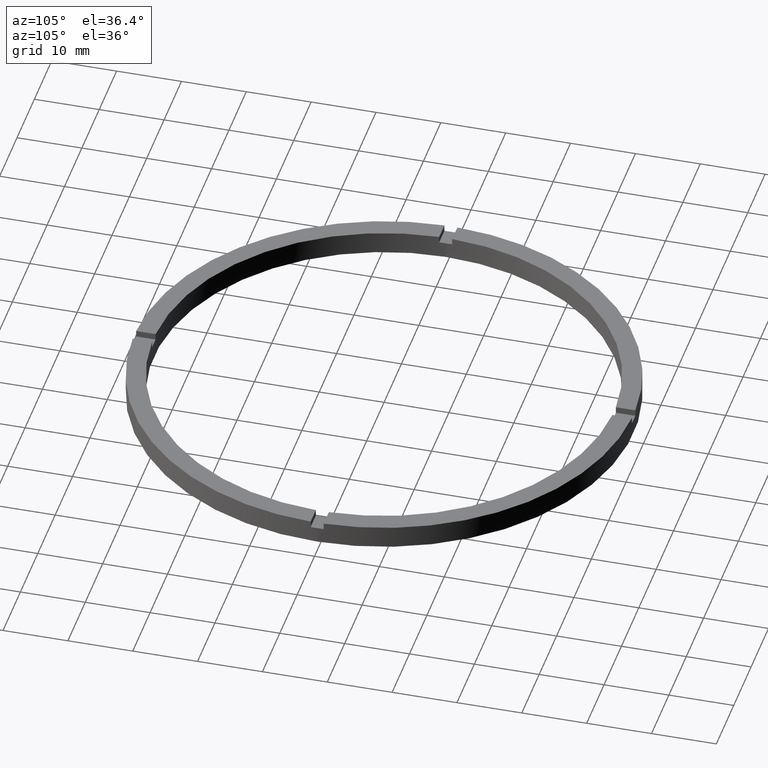
[diagram: clean part render]
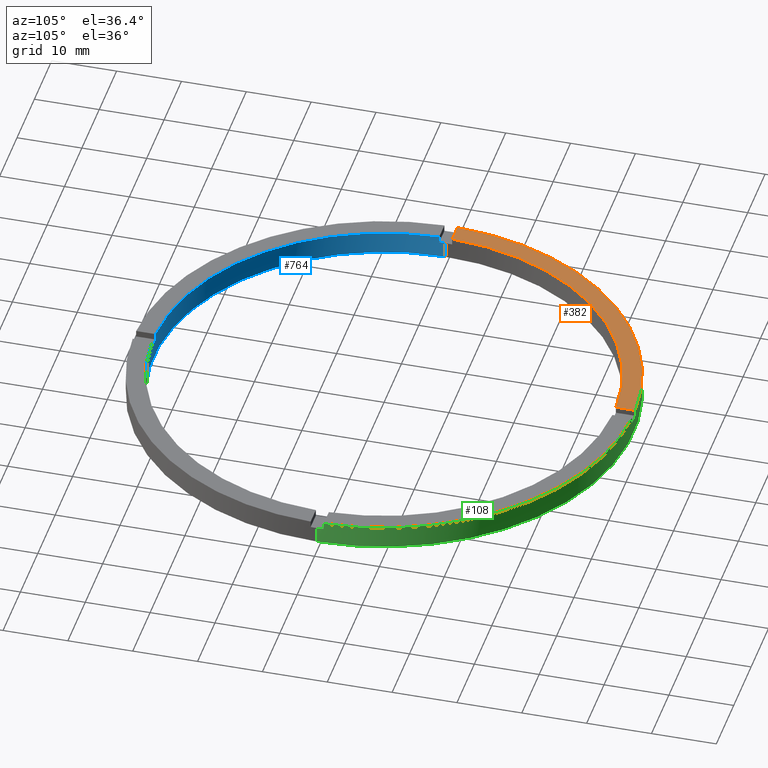
[diagram: same view with three faces highlighted in distinct colors, each labeled with its STEP entity id]
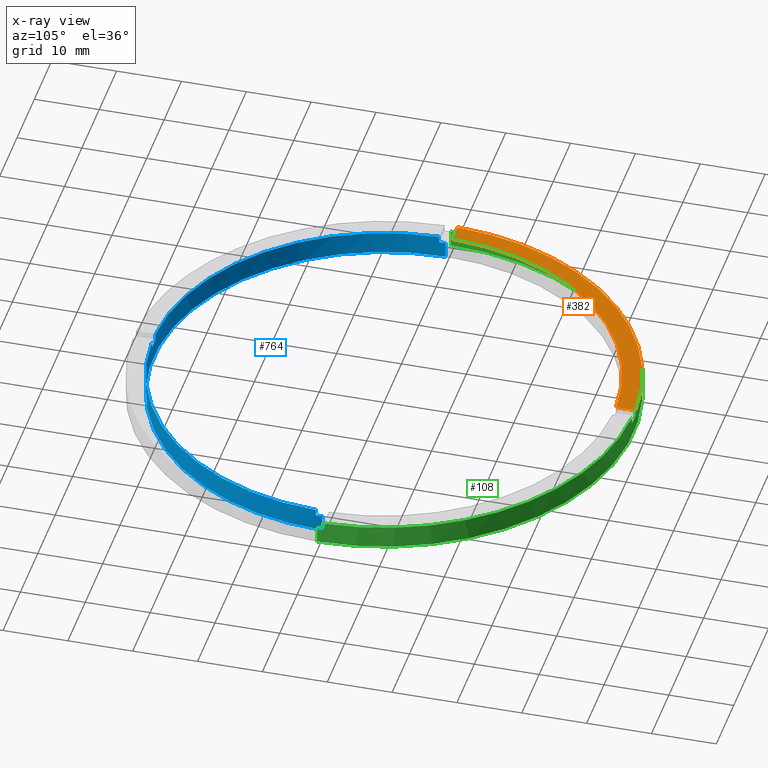
[diagram: x-ray of the same camera — body ghosted, the three highlighted faces saturated]
A machine part, auxiliary view with three faces highlighted in distinct colors.
The next image is the same camera in x-ray (body ghosted, the three faces saturated) — at least one of them is partly hidden behind the body in this view.
Their STEP definitions:

[orange] entity #382 — the highlighted planar face has unit normal (0, 0, 1).
#3 = CARTESIAN_POINT ( 'NONE',  ( 0.000000000000000000, 0.000000000000000000, 3.500000000000000000 ) ) ;
#5 = DIRECTION ( 'NONE',  ( 1.000000000000000000, 0.000000000000000000, 0.000000000000000000 ) ) ;
#25 = DIRECTION ( 'NONE',  ( 0.000000000000000000, 0.000000000000000000, 1.000000000000000000 ) ) ;
#54 = DIRECTION ( 'NONE',  ( 0.000000000000000000, 0.000000000000000000, 1.000000000000000000 ) ) ;
#59 = CARTESIAN_POINT ( 'NONE',  ( -1.000000000000025313, 28.49999999999999645, 3.500000000000000000 ) ) ;
#93 = EDGE_CURVE ( 'NONE', #763, #190, #311, .T. ) ;
#95 = DIRECTION ( 'NONE',  ( -1.000000000000000000, -1.951563910473907735E-16, 0.000000000000000000 ) ) ;
#168 = DIRECTION ( 'NONE',  ( -0.000000000000000000, -1.000000000000000000, -0.000000000000000000 ) ) ;
#175 = CARTESIAN_POINT ( 'NONE',  ( 0.000000000000000000, 0.000000000000000000, 3.500000000000000000 ) ) ;
#190 = VERTEX_POINT ( 'NONE', #381 ) ;
#215 = CARTESIAN_POINT ( 'NONE',  ( -1.000000000000025313, 35.48591269785801217, 3.500000000000000000 ) ) ;
#231 = ORIENTED_EDGE ( 'NONE', *, *, #659, .F. ) ;
#257 = LINE ( 'NONE', #59, #500 ) ;
#311 = CIRCLE ( 'NONE', #563, 38.50000000000000000 ) ;
#339 = CARTESIAN_POINT ( 'NONE',  ( -28.50000000000018474, 0.9999999999999740208, 3.500000000000000000 ) ) ;
#381 = CARTESIAN_POINT ( 'NONE',  ( -38.48701079585163143, 0.9999999999999720224, 3.500000000000000000 ) ) ;
#382 = ADVANCED_FACE ( 'NONE', ( #741 ), #709, .T. ) ;
#388 = EDGE_CURVE ( 'NONE', #763, #740, #257, .T. ) ;
#403 = DIRECTION ( 'NONE',  ( 0.000000000000000000, 0.000000000000000000, 1.000000000000000000 ) ) ;
#429 = VERTEX_POINT ( 'NONE', #615 ) ;
#500 = VECTOR ( 'NONE', #168, 1000.000000000000000 ) ;
#538 = DIRECTION ( 'NONE',  ( 1.000000000000000000, 0.000000000000000000, -0.000000000000000000 ) ) ;
#546 = ORIENTED_EDGE ( 'NONE', *, *, #93, .T. ) ;
#551 = ORIENTED_EDGE ( 'NONE', *, *, #647, .F. ) ;
#563 = AXIS2_PLACEMENT_3D ( 'NONE', #175, #403, #5 ) ;
#566 = AXIS2_PLACEMENT_3D ( 'NONE', #3, #54, #538 ) ;
#583 = CIRCLE ( 'NONE', #656, 35.50000000000000711 ) ;
#587 = VECTOR ( 'NONE', #95, 1000.000000000000000 ) ;
#599 = ORIENTED_EDGE ( 'NONE', *, *, #388, .F. ) ;
#609 = LINE ( 'NONE', #339, #587 ) ;
#615 = CARTESIAN_POINT ( 'NONE',  ( -35.48591269785801217, 0.9999999999999726885, 3.500000000000000000 ) ) ;
#647 = EDGE_CURVE ( 'NONE', #740, #429, #583, .T. ) ;
#656 = AXIS2_PLACEMENT_3D ( 'NONE', #757, #25, #664 ) ;
#659 = EDGE_CURVE ( 'NONE', #429, #190, #609, .T. ) ;
#664 = DIRECTION ( 'NONE',  ( 1.000000000000000000, 0.000000000000000000, 0.000000000000000000 ) ) ;
#709 = PLANE ( 'NONE',  #566 ) ;
#740 = VERTEX_POINT ( 'NONE', #215 ) ;
#741 = FACE_OUTER_BOUND ( 'NONE', #767, .T. ) ;
#757 = CARTESIAN_POINT ( 'NONE',  ( 0.000000000000000000, 0.000000000000000000, 3.500000000000000000 ) ) ;
#763 = VERTEX_POINT ( 'NONE', #768 ) ;
#767 = EDGE_LOOP ( 'NONE', ( #599, #546, #231, #551 ) ) ;
#768 = CARTESIAN_POINT ( 'NONE',  ( -1.000000000000025313, 38.48701079585163143, 3.500000000000000000 ) ) ;

[blue] entity #764 — the highlighted cylindrical surface (partial cylindrical patch) has radius 35.5 mm, axis along (-0, -0, -1).
#15 = DIRECTION ( 'NONE',  ( -0.000000000000000000, -0.000000000000000000, -1.000000000000000000 ) ) ;
#21 = CARTESIAN_POINT ( 'NONE',  ( 0.9999999999998400169, -35.48591269785801927, 3.500000000000000000 ) ) ;
#26 = VERTEX_POINT ( 'NONE', #302 ) ;
#36 = AXIS2_PLACEMENT_3D ( 'NONE', #206, #140, #277 ) ;
#52 = CYLINDRICAL_SURFACE ( 'NONE', #681, 35.50000000000000711 ) ;
#60 = LINE ( 'NONE', #716, #602 ) ;
#70 = LINE ( 'NONE', #733, #346 ) ;
#72 = EDGE_CURVE ( 'NONE', #673, #182, #562, .T. ) ;
#81 = CIRCLE ( 'NONE', #590, 35.50000000000000711 ) ;
#84 = DIRECTION ( 'NONE',  ( -0.000000000000000000, -0.000000000000000000, -1.000000000000000000 ) ) ;
#88 = DIRECTION ( 'NONE',  ( 1.000000000000000000, 0.000000000000000000, 0.000000000000000000 ) ) ;
#100 = DIRECTION ( 'NONE',  ( -1.000000000000000000, 0.000000000000000000, 0.000000000000000000 ) ) ;
#101 = CARTESIAN_POINT ( 'NONE',  ( 0.000000000000000000, 0.000000000000000000, 3.500000000000000000 ) ) ;
#117 = DIRECTION ( 'NONE',  ( -0.000000000000000000, 0.000000000000000000, 1.000000000000000000 ) ) ;
#124 = CARTESIAN_POINT ( 'NONE',  ( -1.000000000000160094, -35.48591269785800506, 3.500000000000000000 ) ) ;
#133 = CARTESIAN_POINT ( 'NONE',  ( -35.48591269785801217, -1.000000000000027311, 3.500000000000000000 ) ) ;
#139 = DIRECTION ( 'NONE',  ( 0.000000000000000000, 0.000000000000000000, 1.000000000000000000 ) ) ;
#140 = DIRECTION ( 'NONE',  ( 0.000000000000000000, 0.000000000000000000, 1.000000000000000000 ) ) ;
#142 = DIRECTION ( 'NONE',  ( 1.000000000000000000, 0.000000000000000000, 0.000000000000000000 ) ) ;
#170 = ORIENTED_EDGE ( 'NONE', *, *, #503, .T. ) ;
#173 = ORIENTED_EDGE ( 'NONE', *, *, #214, .T. ) ;
#179 = VERTEX_POINT ( 'NONE', #680 ) ;
#182 = VERTEX_POINT ( 'NONE', #451 ) ;
#194 = VERTEX_POINT ( 'NONE', #392 ) ;
#197 = CARTESIAN_POINT ( 'NONE',  ( -1.000000000000160094, -35.48591269785800506, 2.500000000000000000 ) ) ;
#200 = ORIENTED_EDGE ( 'NONE', *, *, #641, .F. ) ;
#204 = DIRECTION ( 'NONE',  ( 0.000000000000000000, 0.000000000000000000, 1.000000000000000000 ) ) ;
#206 = CARTESIAN_POINT ( 'NONE',  ( 0.000000000000000000, 0.000000000000000000, 2.500000000000000000 ) ) ;
#209 = ORIENTED_EDGE ( 'NONE', *, *, #620, .F. ) ;
#214 = EDGE_CURVE ( 'NONE', #673, #194, #492, .T. ) ;
#217 = LINE ( 'NONE', #383, #501 ) ;
#229 = CIRCLE ( 'NONE', #622, 35.50000000000000711 ) ;
#230 = EDGE_CURVE ( 'NONE', #542, #770, #771, .T. ) ;
#235 = EDGE_CURVE ( 'NONE', #26, #770, #754, .T. ) ;
#247 = VECTOR ( 'NONE', #522, 1000.000000000000000 ) ;
#250 = VERTEX_POINT ( 'NONE', #21 ) ;
#265 = EDGE_CURVE ( 'NONE', #713, #179, #217, .T. ) ;
#275 = CARTESIAN_POINT ( 'NONE',  ( 0.000000000000000000, 0.000000000000000000, 3.500000000000000000 ) ) ;
#277 = DIRECTION ( 'NONE',  ( 1.000000000000000000, 0.000000000000000000, 0.000000000000000000 ) ) ;
#280 = CARTESIAN_POINT ( 'NONE',  ( 35.50000000000000711, 4.347496136973104070E-15, 0.000000000000000000 ) ) ;
#283 = VERTEX_POINT ( 'NONE', #726 ) ;
#302 = CARTESIAN_POINT ( 'NONE',  ( -35.50000000000000711, 0.000000000000000000, 0.000000000000000000 ) ) ;
#323 = DIRECTION ( 'NONE',  ( 0.000000000000000000, 0.000000000000000000, 1.000000000000000000 ) ) ;
#332 = CARTESIAN_POINT ( 'NONE',  ( 0.000000000000000000, 0.000000000000000000, 0.000000000000000000 ) ) ;
#336 = CIRCLE ( 'NONE', #649, 35.50000000000000711 ) ;
#338 = ORIENTED_EDGE ( 'NONE', *, *, #230, .T. ) ;
#340 = ORIENTED_EDGE ( 'NONE', *, *, #778, .T. ) ;
#345 = CARTESIAN_POINT ( 'NONE',  ( -35.48591269785801217, -1.000000000000027311, 3.500000000000000000 ) ) ;
#346 = VECTOR ( 'NONE', #84, 1000.000000000000000 ) ;
#350 = FACE_OUTER_BOUND ( 'NONE', #466, .T. ) ;
#353 = LINE ( 'NONE', #124, #576 ) ;
#354 = CARTESIAN_POINT ( 'NONE',  ( 35.48591269785800506, -1.000000000000157430, 2.500000000000000000 ) ) ;
#365 = AXIS2_PLACEMENT_3D ( 'NONE', #332, #323, #88 ) ;
#374 = DIRECTION ( 'NONE',  ( 1.000000000000000000, 0.000000000000000000, 0.000000000000000000 ) ) ;
#380 = DIRECTION ( 'NONE',  ( 1.000000000000000000, 0.000000000000000000, 0.000000000000000000 ) ) ;
#383 = CARTESIAN_POINT ( 'NONE',  ( 35.48591269785800506, -1.000000000000157430, 3.500000000000000000 ) ) ;
#391 = DIRECTION ( 'NONE',  ( -0.000000000000000000, -0.000000000000000000, -1.000000000000000000 ) ) ;
#392 = CARTESIAN_POINT ( 'NONE',  ( -1.000000000000160094, -35.48591269785800506, 3.500000000000000000 ) ) ;
#397 = DIRECTION ( 'NONE',  ( 0.000000000000000000, 0.000000000000000000, 1.000000000000000000 ) ) ;
#440 = CARTESIAN_POINT ( 'NONE',  ( 35.50000000000000711, 4.347496136973104070E-15, 3.500000000000000000 ) ) ;
#451 = CARTESIAN_POINT ( 'NONE',  ( -35.48591269785801217, -1.000000000000027311, 2.500000000000000000 ) ) ;
#455 = ORIENTED_EDGE ( 'NONE', *, *, #705, .T. ) ;
#460 = CARTESIAN_POINT ( 'NONE',  ( -35.50000000000000711, 0.000000000000000000, 2.500000000000000000 ) ) ;
#466 = EDGE_LOOP ( 'NONE', ( #712, #338, #675, #209, #455, #597, #173, #200, #170, #682, #340, #697 ) ) ;
#489 = DIRECTION ( 'NONE',  ( 0.000000000000000000, 0.000000000000000000, 1.000000000000000000 ) ) ;
#492 = CIRCLE ( 'NONE', #634, 35.50000000000000711 ) ;
#501 = VECTOR ( 'NONE', #511, 1000.000000000000000 ) ;
#503 = EDGE_CURVE ( 'NONE', #683, #283, #229, .T. ) ;
#511 = DIRECTION ( 'NONE',  ( 0.000000000000000000, 0.000000000000000000, 1.000000000000000000 ) ) ;
#521 = CARTESIAN_POINT ( 'NONE',  ( 0.000000000000000000, 0.000000000000000000, 2.500000000000000000 ) ) ;
#522 = DIRECTION ( 'NONE',  ( -0.000000000000000000, -0.000000000000000000, -1.000000000000000000 ) ) ;
#542 = VERTEX_POINT ( 'NONE', #653 ) ;
#553 = VECTOR ( 'NONE', #671, 1000.000000000000000 ) ;
#562 = LINE ( 'NONE', #345, #553 ) ;
#573 = CIRCLE ( 'NONE', #36, 35.50000000000000711 ) ;
#576 = VECTOR ( 'NONE', #489, 1000.000000000000000 ) ;
#582 = CARTESIAN_POINT ( 'NONE',  ( 0.000000000000000000, 0.000000000000000000, 2.500000000000000000 ) ) ;
#590 = AXIS2_PLACEMENT_3D ( 'NONE', #521, #204, #380 ) ;
#597 = ORIENTED_EDGE ( 'NONE', *, *, #72, .F. ) ;
#602 = VECTOR ( 'NONE', #15, 1000.000000000000000 ) ;
#620 = EDGE_CURVE ( 'NONE', #760, #26, #60, .T. ) ;
#621 = EDGE_CURVE ( 'NONE', #250, #283, #70, .T. ) ;
#622 = AXIS2_PLACEMENT_3D ( 'NONE', #582, #117, #374 ) ;
#634 = AXIS2_PLACEMENT_3D ( 'NONE', #101, #139, #142 ) ;
#638 = CARTESIAN_POINT ( 'NONE',  ( 0.000000000000000000, 0.000000000000000000, 3.500000000000000000 ) ) ;
#641 = EDGE_CURVE ( 'NONE', #683, #194, #353, .T. ) ;
#649 = AXIS2_PLACEMENT_3D ( 'NONE', #275, #397, #672 ) ;
#653 = CARTESIAN_POINT ( 'NONE',  ( 35.50000000000000711, 4.347496136973104070E-15, 2.500000000000000000 ) ) ;
#660 = EDGE_CURVE ( 'NONE', #713, #542, #573, .T. ) ;
#671 = DIRECTION ( 'NONE',  ( -0.000000000000000000, -0.000000000000000000, -1.000000000000000000 ) ) ;
#672 = DIRECTION ( 'NONE',  ( 1.000000000000000000, 0.000000000000000000, 0.000000000000000000 ) ) ;
#673 = VERTEX_POINT ( 'NONE', #133 ) ;
#675 = ORIENTED_EDGE ( 'NONE', *, *, #235, .F. ) ;
#680 = CARTESIAN_POINT ( 'NONE',  ( 35.48591269785800506, -1.000000000000157430, 3.500000000000000000 ) ) ;
#681 = AXIS2_PLACEMENT_3D ( 'NONE', #638, #391, #100 ) ;
#682 = ORIENTED_EDGE ( 'NONE', *, *, #621, .F. ) ;
#683 = VERTEX_POINT ( 'NONE', #197 ) ;
#697 = ORIENTED_EDGE ( 'NONE', *, *, #265, .F. ) ;
#705 = EDGE_CURVE ( 'NONE', #760, #182, #81, .T. ) ;
#712 = ORIENTED_EDGE ( 'NONE', *, *, #660, .T. ) ;
#713 = VERTEX_POINT ( 'NONE', #354 ) ;
#716 = CARTESIAN_POINT ( 'NONE',  ( -35.50000000000000711, 0.000000000000000000, 3.500000000000000000 ) ) ;
#726 = CARTESIAN_POINT ( 'NONE',  ( 0.9999999999998400169, -35.48591269785801927, 2.500000000000000000 ) ) ;
#733 = CARTESIAN_POINT ( 'NONE',  ( 0.9999999999998400169, -35.48591269785801927, 3.500000000000000000 ) ) ;
#754 = CIRCLE ( 'NONE', #365, 35.50000000000000711 ) ;
#760 = VERTEX_POINT ( 'NONE', #460 ) ;
#764 = ADVANCED_FACE ( 'NONE', ( #350 ), #52, .F. ) ;
#770 = VERTEX_POINT ( 'NONE', #280 ) ;
#771 = LINE ( 'NONE', #440, #247 ) ;
#778 = EDGE_CURVE ( 'NONE', #250, #179, #336, .T. ) ;

[green] entity #108 — the highlighted cylindrical surface (partial cylindrical patch) has radius 38.5 mm, axis along (-0, -0, -1).
#5 = DIRECTION ( 'NONE',  ( 1.000000000000000000, 0.000000000000000000, 0.000000000000000000 ) ) ;
#16 = VERTEX_POINT ( 'NONE', #106 ) ;
#18 = VECTOR ( 'NONE', #481, 1000.000000000000000 ) ;
#42 = EDGE_CURVE ( 'NONE', #71, #695, #291, .T. ) ;
#56 = AXIS2_PLACEMENT_3D ( 'NONE', #498, #550, #315 ) ;
#63 = DIRECTION ( 'NONE',  ( -1.000000000000000000, 0.000000000000000000, 0.000000000000000000 ) ) ;
#71 = VERTEX_POINT ( 'NONE', #384 ) ;
#77 = ORIENTED_EDGE ( 'NONE', *, *, #606, .F. ) ;
#90 = EDGE_CURVE ( 'NONE', #443, #16, #322, .T. ) ;
#91 = LINE ( 'NONE', #255, #591 ) ;
#93 = EDGE_CURVE ( 'NONE', #763, #190, #311, .T. ) ;
#106 = CARTESIAN_POINT ( 'NONE',  ( -1.000000000000025313, 38.48701079585163143, 2.500000000000000000 ) ) ;
#108 = ADVANCED_FACE ( 'NONE', ( #308 ), #575, .T. ) ;
#116 = AXIS2_PLACEMENT_3D ( 'NONE', #603, #517, #773 ) ;
#138 = DIRECTION ( 'NONE',  ( 1.000000000000000000, 0.000000000000000000, 0.000000000000000000 ) ) ;
#141 = CARTESIAN_POINT ( 'NONE',  ( 38.48701079585163853, 0.9999999999998427924, 2.500000000000000000 ) ) ;
#151 = DIRECTION ( 'NONE',  ( -0.000000000000000000, -0.000000000000000000, -1.000000000000000000 ) ) ;
#158 = ORIENTED_EDGE ( 'NONE', *, *, #90, .F. ) ;
#175 = CARTESIAN_POINT ( 'NONE',  ( 0.000000000000000000, 0.000000000000000000, 3.500000000000000000 ) ) ;
#176 = ORIENTED_EDGE ( 'NONE', *, *, #366, .T. ) ;
#190 = VERTEX_POINT ( 'NONE', #381 ) ;
#199 = AXIS2_PLACEMENT_3D ( 'NONE', #665, #586, #138 ) ;
#207 = VERTEX_POINT ( 'NONE', #427 ) ;
#220 = VECTOR ( 'NONE', #151, 1000.000000000000000 ) ;
#221 = LINE ( 'NONE', #588, #474 ) ;
#228 = ORIENTED_EDGE ( 'NONE', *, *, #93, .F. ) ;
#243 = VECTOR ( 'NONE', #545, 1000.000000000000000 ) ;
#255 = CARTESIAN_POINT ( 'NONE',  ( 38.50000000000000000, 4.714890176717309515E-15, 3.500000000000000000 ) ) ;
#259 = CARTESIAN_POINT ( 'NONE',  ( -38.50000000000000000, 0.000000000000000000, 3.500000000000000000 ) ) ;
#262 = DIRECTION ( 'NONE',  ( -0.000000000000000000, -0.000000000000000000, -1.000000000000000000 ) ) ;
#268 = CARTESIAN_POINT ( 'NONE',  ( 0.000000000000000000, 0.000000000000000000, 2.500000000000000000 ) ) ;
#291 = LINE ( 'NONE', #782, #18 ) ;
#292 = CARTESIAN_POINT ( 'NONE',  ( -38.50000000000000000, 0.000000000000000000, 2.500000000000000000 ) ) ;
#293 = CARTESIAN_POINT ( 'NONE',  ( 0.9999999999999746869, 38.48701079585163143, 2.500000000000000000 ) ) ;
#301 = EDGE_CURVE ( 'NONE', #528, #190, #494, .T. ) ;
#304 = CARTESIAN_POINT ( 'NONE',  ( 0.000000000000000000, 0.000000000000000000, 3.500000000000000000 ) ) ;
#308 = FACE_OUTER_BOUND ( 'NONE', #344, .T. ) ;
#311 = CIRCLE ( 'NONE', #563, 38.50000000000000000 ) ;
#315 = DIRECTION ( 'NONE',  ( 1.000000000000000000, 0.000000000000000000, 0.000000000000000000 ) ) ;
#317 = VECTOR ( 'NONE', #557, 1000.000000000000000 ) ;
#322 = CIRCLE ( 'NONE', #116, 38.50000000000000000 ) ;
#328 = AXIS2_PLACEMENT_3D ( 'NONE', #658, #533, #738 ) ;
#344 = EDGE_LOOP ( 'NONE', ( #732, #721, #176, #77, #424, #487, #228, #684, #158, #434, #457, #585 ) ) ;
#347 = CIRCLE ( 'NONE', #199, 38.50000000000000000 ) ;
#349 = EDGE_CURVE ( 'NONE', #207, #695, #766, .T. ) ;
#357 = LINE ( 'NONE', #259, #317 ) ;
#366 = EDGE_CURVE ( 'NONE', #465, #415, #731, .T. ) ;
#368 = CARTESIAN_POINT ( 'NONE',  ( -38.50000000000000000, 0.000000000000000000, 0.000000000000000000 ) ) ;
#369 = DIRECTION ( 'NONE',  ( 0.000000000000000000, 0.000000000000000000, 1.000000000000000000 ) ) ;
#371 = EDGE_CURVE ( 'NONE', #528, #724, #508, .T. ) ;
#375 = CARTESIAN_POINT ( 'NONE',  ( -38.48701079585163143, 0.9999999999999720224, 3.500000000000000000 ) ) ;
#381 = CARTESIAN_POINT ( 'NONE',  ( -38.48701079585163143, 0.9999999999999720224, 3.500000000000000000 ) ) ;
#384 = CARTESIAN_POINT ( 'NONE',  ( 38.48701079585163853, 0.9999999999998427924, 3.500000000000000000 ) ) ;
#401 = CARTESIAN_POINT ( 'NONE',  ( 38.50000000000000000, 4.714890176717309515E-15, 0.000000000000000000 ) ) ;
#403 = DIRECTION ( 'NONE',  ( 0.000000000000000000, 0.000000000000000000, 1.000000000000000000 ) ) ;
#415 = VERTEX_POINT ( 'NONE', #368 ) ;
#419 = EDGE_CURVE ( 'NONE', #763, #16, #482, .T. ) ;
#424 = ORIENTED_EDGE ( 'NONE', *, *, #371, .F. ) ;
#427 = CARTESIAN_POINT ( 'NONE',  ( 38.50000000000000000, 4.714890176717309515E-15, 2.500000000000000000 ) ) ;
#434 = ORIENTED_EDGE ( 'NONE', *, *, #476, .T. ) ;
#439 = CARTESIAN_POINT ( 'NONE',  ( 0.9999999999999746869, 38.48701079585163143, 3.500000000000000000 ) ) ;
#441 = AXIS2_PLACEMENT_3D ( 'NONE', #304, #262, #63 ) ;
#443 = VERTEX_POINT ( 'NONE', #293 ) ;
#457 = ORIENTED_EDGE ( 'NONE', *, *, #701, .F. ) ;
#465 = VERTEX_POINT ( 'NONE', #401 ) ;
#473 = DIRECTION ( 'NONE',  ( 1.000000000000000000, 0.000000000000000000, 0.000000000000000000 ) ) ;
#474 = VECTOR ( 'NONE', #644, 1000.000000000000000 ) ;
#476 = EDGE_CURVE ( 'NONE', #443, #708, #221, .T. ) ;
#481 = DIRECTION ( 'NONE',  ( -0.000000000000000000, -0.000000000000000000, -1.000000000000000000 ) ) ;
#482 = LINE ( 'NONE', #710, #220 ) ;
#487 = ORIENTED_EDGE ( 'NONE', *, *, #301, .T. ) ;
#494 = LINE ( 'NONE', #375, #243 ) ;
#496 = DIRECTION ( 'NONE',  ( -0.000000000000000000, -0.000000000000000000, -1.000000000000000000 ) ) ;
#498 = CARTESIAN_POINT ( 'NONE',  ( 0.000000000000000000, 0.000000000000000000, 0.000000000000000000 ) ) ;
#508 = CIRCLE ( 'NONE', #328, 38.50000000000000000 ) ;
#517 = DIRECTION ( 'NONE',  ( 0.000000000000000000, -0.000000000000000000, 1.000000000000000000 ) ) ;
#528 = VERTEX_POINT ( 'NONE', #657 ) ;
#533 = DIRECTION ( 'NONE',  ( 0.000000000000000000, 0.000000000000000000, 1.000000000000000000 ) ) ;
#545 = DIRECTION ( 'NONE',  ( 0.000000000000000000, 0.000000000000000000, 1.000000000000000000 ) ) ;
#550 = DIRECTION ( 'NONE',  ( 0.000000000000000000, 0.000000000000000000, 1.000000000000000000 ) ) ;
#557 = DIRECTION ( 'NONE',  ( -0.000000000000000000, -0.000000000000000000, -1.000000000000000000 ) ) ;
#563 = AXIS2_PLACEMENT_3D ( 'NONE', #175, #403, #5 ) ;
#575 = CYLINDRICAL_SURFACE ( 'NONE', #441, 38.50000000000000000 ) ;
#585 = ORIENTED_EDGE ( 'NONE', *, *, #42, .T. ) ;
#586 = DIRECTION ( 'NONE',  ( 0.000000000000000000, 0.000000000000000000, 1.000000000000000000 ) ) ;
#588 = CARTESIAN_POINT ( 'NONE',  ( 0.9999999999999746869, 38.48701079585163143, 3.500000000000000000 ) ) ;
#591 = VECTOR ( 'NONE', #496, 1000.000000000000000 ) ;
#603 = CARTESIAN_POINT ( 'NONE',  ( 0.000000000000000000, 0.000000000000000000, 2.500000000000000000 ) ) ;
#606 = EDGE_CURVE ( 'NONE', #724, #415, #357, .T. ) ;
#637 = EDGE_CURVE ( 'NONE', #207, #465, #91, .T. ) ;
#644 = DIRECTION ( 'NONE',  ( 0.000000000000000000, 0.000000000000000000, 1.000000000000000000 ) ) ;
#657 = CARTESIAN_POINT ( 'NONE',  ( -38.48701079585163143, 0.9999999999999720224, 2.500000000000000000 ) ) ;
#658 = CARTESIAN_POINT ( 'NONE',  ( 0.000000000000000000, 0.000000000000000000, 2.500000000000000000 ) ) ;
#665 = CARTESIAN_POINT ( 'NONE',  ( 0.000000000000000000, 0.000000000000000000, 3.500000000000000000 ) ) ;
#676 = AXIS2_PLACEMENT_3D ( 'NONE', #268, #369, #473 ) ;
#684 = ORIENTED_EDGE ( 'NONE', *, *, #419, .T. ) ;
#695 = VERTEX_POINT ( 'NONE', #141 ) ;
#701 = EDGE_CURVE ( 'NONE', #71, #708, #347, .T. ) ;
#708 = VERTEX_POINT ( 'NONE', #439 ) ;
#710 = CARTESIAN_POINT ( 'NONE',  ( -1.000000000000025313, 38.48701079585163143, 3.500000000000000000 ) ) ;
#721 = ORIENTED_EDGE ( 'NONE', *, *, #637, .T. ) ;
#724 = VERTEX_POINT ( 'NONE', #292 ) ;
#731 = CIRCLE ( 'NONE', #56, 38.50000000000000000 ) ;
#732 = ORIENTED_EDGE ( 'NONE', *, *, #349, .F. ) ;
#738 = DIRECTION ( 'NONE',  ( 1.000000000000000000, 0.000000000000000000, 0.000000000000000000 ) ) ;
#763 = VERTEX_POINT ( 'NONE', #768 ) ;
#766 = CIRCLE ( 'NONE', #676, 38.50000000000000000 ) ;
#768 = CARTESIAN_POINT ( 'NONE',  ( -1.000000000000025313, 38.48701079585163143, 3.500000000000000000 ) ) ;
#773 = DIRECTION ( 'NONE',  ( 1.000000000000000000, 0.000000000000000000, 0.000000000000000000 ) ) ;
#782 = CARTESIAN_POINT ( 'NONE',  ( 38.48701079585163853, 0.9999999999998427924, 3.500000000000000000 ) ) ;